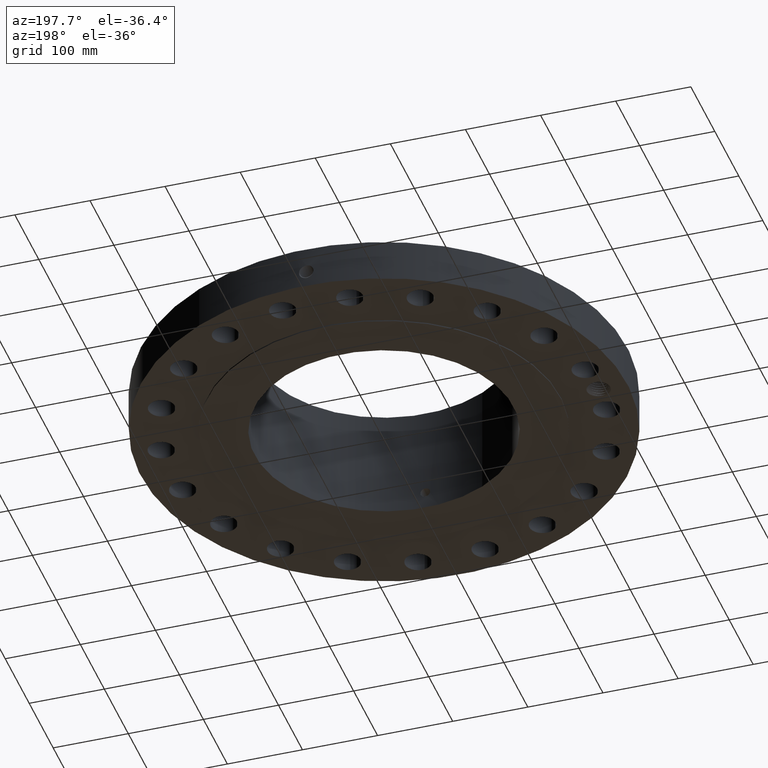
[diagram: clean part render]
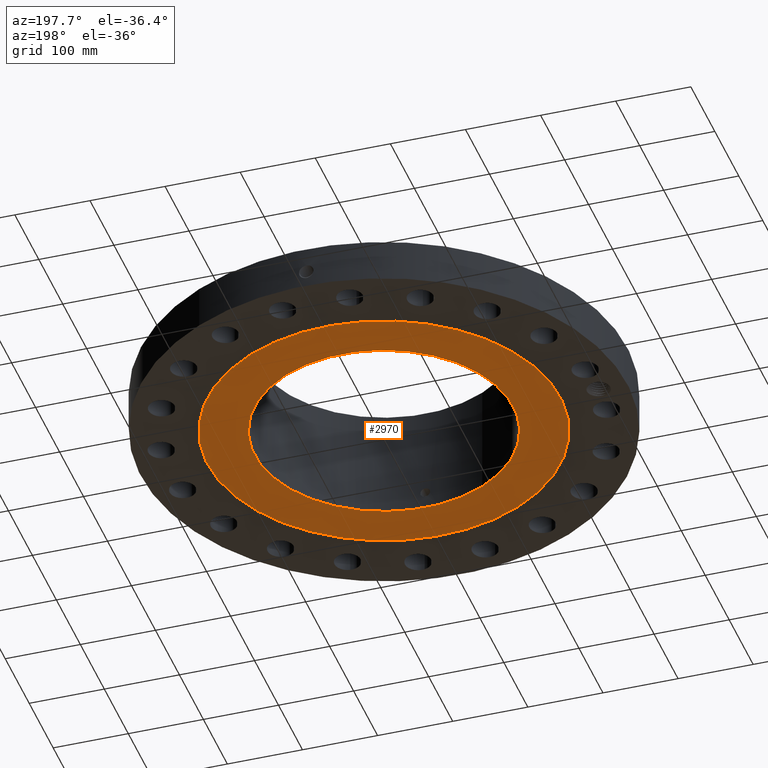
[diagram: same view with one face highlighted and labeled with its STEP entity id]
A machine part, auxiliary view. The second image highlights one B-rep face of the part: STEP entity #2970.
In plain terms, the highlighted planar face has unit normal (0, 0, -1).
Its self-contained STEP definition (entity closure, byte-faithful):
#1590=AXIS2_PLACEMENT_3D('Circle Axis2P3D',#1588,#1589,$) ;
#1616=AXIS2_PLACEMENT_3D('Circle Axis2P3D',#1614,#1615,$) ;
#2946=AXIS2_PLACEMENT_3D('Plane Axis2P3D',#2943,#2944,#2945) ;
#2954=AXIS2_PLACEMENT_3D('Circle Axis2P3D',#2952,#2953,$) ;
#2963=AXIS2_PLACEMENT_3D('Circle Axis2P3D',#2961,#2962,$) ;
#1588=CARTESIAN_POINT('Axis2P3D Location',(0.,0.,1.1189649382E-015)) ;
#1592=CARTESIAN_POINT('Vertex',(4.43468623211,8.11763869752,1.67844740731E-015)) ;
#1594=CARTESIAN_POINT('Vertex',(-4.43468623211,-8.11763869752,1.67844740731E-015)) ;
#1614=CARTESIAN_POINT('Axis2P3D Location',(0.,0.,1.1189649382E-015)) ;
#2943=CARTESIAN_POINT('Axis2P3D Location',(0.,6.78100000003,0.)) ;
#2952=CARTESIAN_POINT('Axis2P3D Location',(0.,0.,0.)) ;
#2956=CARTESIAN_POINT('Vertex',(3.25098457729,5.9508873522,-4.25206676518E-014)) ;
#2958=CARTESIAN_POINT('Vertex',(-3.25098457729,-5.9508873522,-4.25206676518E-014)) ;
#2961=CARTESIAN_POINT('Axis2P3D Location',(0.,0.,0.)) ;
#1589=DIRECTION('Axis2P3D Direction',(0.,0.,-0.0393700787402)) ;
#1615=DIRECTION('Axis2P3D Direction',(0.,0.,-0.0393700787402)) ;
#2944=DIRECTION('Axis2P3D Direction',(0.,0.,-0.0393700787402)) ;
#2945=DIRECTION('Axis2P3D XDirection',(0.0393700787402,0.,0.)) ;
#2953=DIRECTION('Axis2P3D Direction',(0.,0.,-0.0393700787402)) ;
#2962=DIRECTION('Axis2P3D Direction',(0.,0.,-0.0393700787402)) ;
#2949=ORIENTED_EDGE('',*,*,#1618,.T.) ;
#2950=ORIENTED_EDGE('',*,*,#1596,.T.) ;
#2967=ORIENTED_EDGE('',*,*,#2960,.F.) ;
#2968=ORIENTED_EDGE('',*,*,#2965,.F.) ;
#2969=FACE_BOUND('',#2966,.T.) ;
#2970=ADVANCED_FACE('PartBody',(#2951,#2969),#2947,.T.) ;
#1591=CIRCLE('generated circle',#1590,9.25000000004) ;
#1617=CIRCLE('generated circle',#1616,9.25000000004) ;
#2955=CIRCLE('generated circle',#2954,6.78100000003) ;
#2964=CIRCLE('generated circle',#2963,6.78100000003) ;
#1596=EDGE_CURVE('',#1593,#1595,#1591,.T.) ;
#1618=EDGE_CURVE('',#1595,#1593,#1617,.T.) ;
#2960=EDGE_CURVE('',#2957,#2959,#2955,.T.) ;
#2965=EDGE_CURVE('',#2959,#2957,#2964,.T.) ;
#2948=EDGE_LOOP('',(#2949,#2950)) ;
#2966=EDGE_LOOP('',(#2967,#2968)) ;
#2951=FACE_OUTER_BOUND('',#2948,.T.) ;
#2947=PLANE('',#2946) ;
#1593=VERTEX_POINT('',#1592) ;
#1595=VERTEX_POINT('',#1594) ;
#2957=VERTEX_POINT('',#2956) ;
#2959=VERTEX_POINT('',#2958) ;